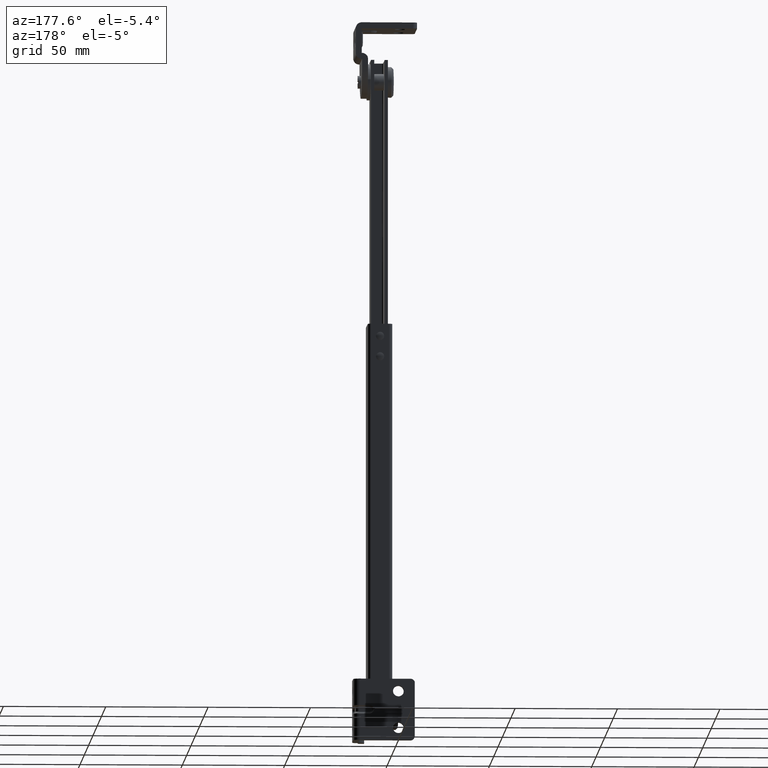
[diagram: clean part render]
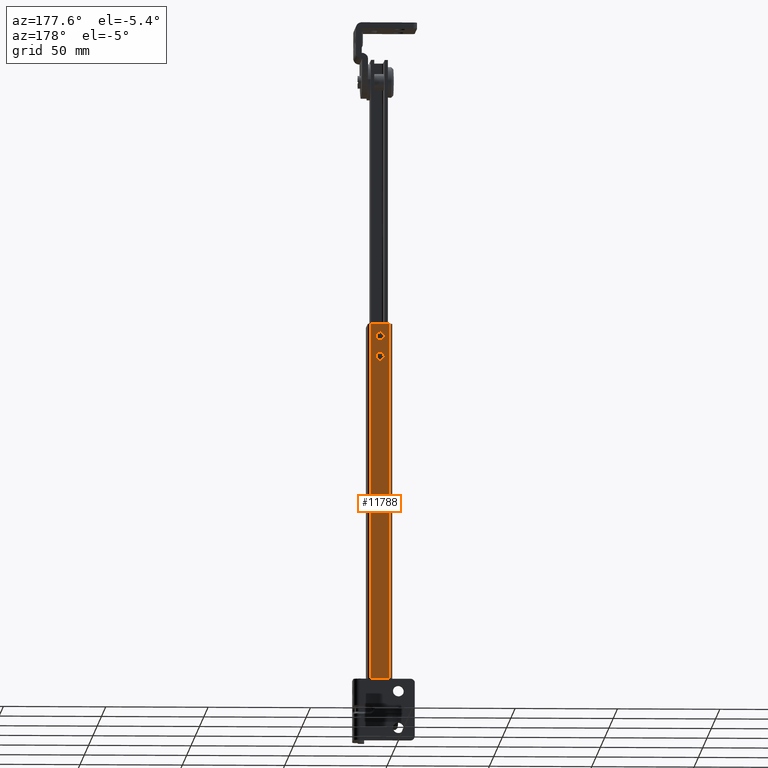
[diagram: same view with one face highlighted and labeled with its STEP entity id]
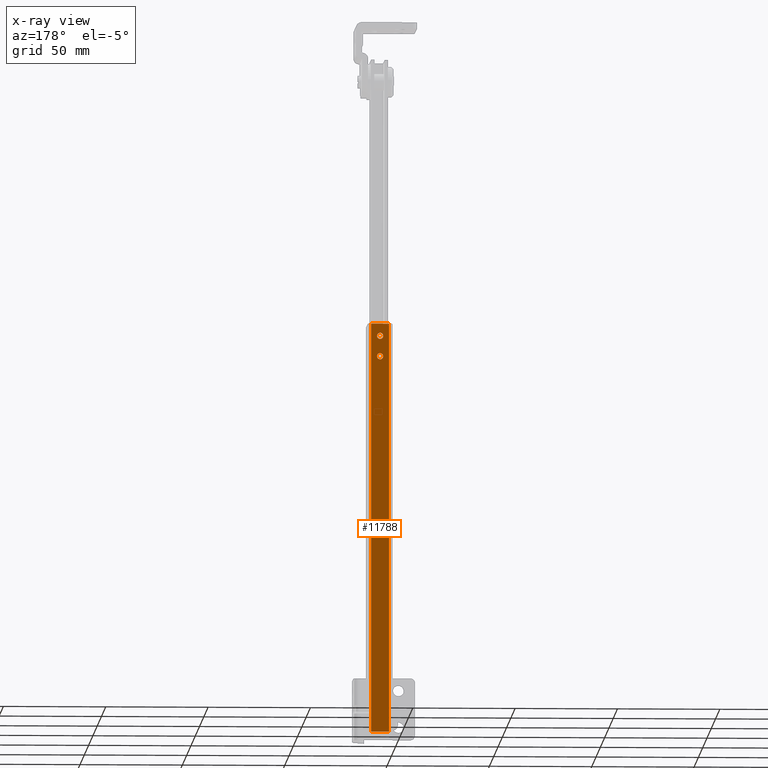
[diagram: x-ray of the same camera — body ghosted, the highlighted face saturated]
A machine part, auxiliary view. The second image highlights one B-rep face of the part: STEP entity #11788.
The next image is the same camera in x-ray: the body ghosted, the highlighted face saturated — about 0% of this face is hidden behind the body in this view.
In plain terms, the highlighted face is a freeform B-spline surface patch.
Its self-contained STEP definition (entity closure, byte-faithful):
#10694=CARTESIAN_POINT('',(7.489514289281042,12.500000000000000,174.677051354209990));
#10695=VERTEX_POINT('',#10694);
#10701=CARTESIAN_POINT('',(6.0,12.500000000000000,173.0));
#10702=VERTEX_POINT('',#10701);
#10703=CARTESIAN_POINT('',(7.489514289281042,12.499999999999996,174.677051354209940));
#10704=CARTESIAN_POINT('',(7.500000000000000,12.500000000000002,174.588836181726260));
#10705=CARTESIAN_POINT('',(7.500000000000000,12.500000000000000,174.500000000000000));
#10706=CARTESIAN_POINT('',(7.500000000000000,12.500000000000000,172.999999999999970));
#10707=CARTESIAN_POINT('',(6.0,12.500000000000000,173.0));
#10715=(BOUNDED_CURVE()B_SPLINE_CURVE(2,(#10703,#10704,#10705,#10706,#10707),.UNSPECIFIED.,.F.,.U.)B_SPLINE_CURVE_WITH_KNOTS((3,2,3),(0.229562473010769,0.250000000000000,0.500000000000000),.UNSPECIFIED.)CURVE()GEOMETRIC_REPRESENTATION_ITEM()RATIONAL_B_SPLINE_CURVE((0.956026753198310,0.976055947742150,1.0,0.707106781186548,1.0))REPRESENTATION_ITEM(''));
#10716=EDGE_CURVE('',#10695,#10702,#10715,.T.);
#10718=CARTESIAN_POINT('',(4.502797802476657,12.500000000000000,174.408427188908090));
#10719=VERTEX_POINT('',#10718);
#10720=CARTESIAN_POINT('',(6.0,12.500000000000000,173.0));
#10721=CARTESIAN_POINT('',(4.588940903021047,12.500000000000000,173.000000000000060));
#10722=CARTESIAN_POINT('',(4.502797802476657,12.499999999999998,174.408427188908120));
#10730=(BOUNDED_CURVE()B_SPLINE_CURVE(2,(#10720,#10721,#10722),.UNSPECIFIED.,.F.,.U.)B_SPLINE_CURVE_WITH_KNOTS((3,3),(0.500000000000000,0.739332961829477),.UNSPECIFIED.)CURVE()GEOMETRIC_REPRESENTATION_ITEM()RATIONAL_B_SPLINE_CURVE((1.0,0.719603993766429,0.976072040789155))REPRESENTATION_ITEM(''));
#10731=EDGE_CURVE('',#10702,#10719,#10730,.T.);
#10805=CARTESIAN_POINT('',(6.0,12.500000000000000,176.0));
#10806=VERTEX_POINT('',#10805);
#10807=CARTESIAN_POINT('',(4.502797802476657,12.499999999999996,174.408427188908060));
#10808=CARTESIAN_POINT('',(4.500000000000001,12.500000000000000,174.454170853257440));
#10809=CARTESIAN_POINT('',(4.500000000000001,12.500000000000000,174.500000000000000));
#10810=CARTESIAN_POINT('',(4.500000000000002,12.500000000000000,176.000000000000060));
#10811=CARTESIAN_POINT('',(6.0,12.500000000000000,176.0));
#10819=(BOUNDED_CURVE()B_SPLINE_CURVE(2,(#10807,#10808,#10809,#10810,#10811),.UNSPECIFIED.,.F.,.U.)B_SPLINE_CURVE_WITH_KNOTS((3,2,3),(0.739332961829477,0.750000000000000,1.0),.UNSPECIFIED.)CURVE()GEOMETRIC_REPRESENTATION_ITEM()RATIONAL_B_SPLINE_CURVE((0.976072040789155,0.987502787420118,1.0,0.707106781186548,1.0))REPRESENTATION_ITEM(''));
#10820=EDGE_CURVE('',#10719,#10806,#10819,.T.);
#10822=CARTESIAN_POINT('',(6.0,12.500000000000000,176.0));
#10823=CARTESIAN_POINT('',(7.332261784919076,12.499999999999998,176.000000000000090));
#10824=CARTESIAN_POINT('',(7.489514289281042,12.500000000000004,174.677051354209910));
#10832=(BOUNDED_CURVE()B_SPLINE_CURVE(2,(#10822,#10823,#10824),.UNSPECIFIED.,.F.,.U.)B_SPLINE_CURVE_WITH_KNOTS((3,3),(0.0,0.229562473010769),.UNSPECIFIED.)CURVE()GEOMETRIC_REPRESENTATION_ITEM()RATIONAL_B_SPLINE_CURVE((1.0,0.731050833444398,0.956026753198310))REPRESENTATION_ITEM(''));
#10833=EDGE_CURVE('',#10806,#10695,#10832,.T.);
#10880=CARTESIAN_POINT('',(7.489514289281044,12.500000000000000,184.677051354209990));
#10881=VERTEX_POINT('',#10880);
#10887=CARTESIAN_POINT('',(6.0,12.500000000000000,183.0));
#10888=VERTEX_POINT('',#10887);
#10889=CARTESIAN_POINT('',(7.489514289281044,12.500000000000000,184.677051354210020));
#10890=CARTESIAN_POINT('',(7.499999999999999,12.500000000000004,184.588836181726150));
#10891=CARTESIAN_POINT('',(7.500000000000000,12.500000000000000,184.500000000000000));
#10892=CARTESIAN_POINT('',(7.500000000000000,12.500000000000000,182.999999999999970));
#10893=CARTESIAN_POINT('',(6.0,12.500000000000000,183.0));
#10901=(BOUNDED_CURVE()B_SPLINE_CURVE(2,(#10889,#10890,#10891,#10892,#10893),.UNSPECIFIED.,.F.,.U.)B_SPLINE_CURVE_WITH_KNOTS((3,2,3),(0.229562473010775,0.250000000000000,0.500000000000000),.UNSPECIFIED.)CURVE()GEOMETRIC_REPRESENTATION_ITEM()RATIONAL_B_SPLINE_CURVE((0.956026753198322,0.976055947742156,1.0,0.707106781186548,1.0))REPRESENTATION_ITEM(''));
#10902=EDGE_CURVE('',#10881,#10888,#10901,.T.);
#10904=CARTESIAN_POINT('',(4.502797802476657,12.500000000000000,184.408427188908090));
#10905=VERTEX_POINT('',#10904);
#10906=CARTESIAN_POINT('',(6.0,12.500000000000000,183.0));
#10907=CARTESIAN_POINT('',(4.588940903021047,12.500000000000000,183.000000000000090));
#10908=CARTESIAN_POINT('',(4.502797802476657,12.499999999999998,184.408427188908060));
#10916=(BOUNDED_CURVE()B_SPLINE_CURVE(2,(#10906,#10907,#10908),.UNSPECIFIED.,.F.,.U.)B_SPLINE_CURVE_WITH_KNOTS((3,3),(0.500000000000000,0.739332961829477),.UNSPECIFIED.)CURVE()GEOMETRIC_REPRESENTATION_ITEM()RATIONAL_B_SPLINE_CURVE((1.0,0.719603993766429,0.976072040789155))REPRESENTATION_ITEM(''));
#10917=EDGE_CURVE('',#10888,#10905,#10916,.T.);
#10991=CARTESIAN_POINT('',(6.0,12.500000000000000,186.0));
#10992=VERTEX_POINT('',#10991);
#10993=CARTESIAN_POINT('',(4.502797802476657,12.499999999999996,184.408427188908120));
#10994=CARTESIAN_POINT('',(4.500000000000001,12.500000000000000,184.454170853257440));
#10995=CARTESIAN_POINT('',(4.500000000000001,12.500000000000000,184.500000000000000));
#10996=CARTESIAN_POINT('',(4.500000000000002,12.500000000000000,186.000000000000090));
#10997=CARTESIAN_POINT('',(6.0,12.500000000000000,186.0));
#11005=(BOUNDED_CURVE()B_SPLINE_CURVE(2,(#10993,#10994,#10995,#10996,#10997),.UNSPECIFIED.,.F.,.U.)B_SPLINE_CURVE_WITH_KNOTS((3,2,3),(0.739332961829477,0.750000000000000,1.0),.UNSPECIFIED.)CURVE()GEOMETRIC_REPRESENTATION_ITEM()RATIONAL_B_SPLINE_CURVE((0.976072040789155,0.987502787420118,1.0,0.707106781186548,1.0))REPRESENTATION_ITEM(''));
#11006=EDGE_CURVE('',#10905,#10992,#11005,.T.);
#11008=CARTESIAN_POINT('',(6.0,12.500000000000000,186.0));
#11009=CARTESIAN_POINT('',(7.332261784919123,12.500000000000000,186.000000000000030));
#11010=CARTESIAN_POINT('',(7.489514289281045,12.499999999999993,184.677051354209960));
#11018=(BOUNDED_CURVE()B_SPLINE_CURVE(2,(#11008,#11009,#11010),.UNSPECIFIED.,.F.,.U.)B_SPLINE_CURVE_WITH_KNOTS((3,3),(0.0,0.229562473010775),.UNSPECIFIED.)CURVE()GEOMETRIC_REPRESENTATION_ITEM()RATIONAL_B_SPLINE_CURVE((1.0,0.731050833444391,0.956026753198321))REPRESENTATION_ITEM(''));
#11019=EDGE_CURVE('',#10992,#10881,#11018,.T.);
#11399=CARTESIAN_POINT('',(10.402523821338040,12.500000000000000,190.500000000000000));
#11400=VERTEX_POINT('',#11399);
#11414=CARTESIAN_POINT('',(1.597476178661950,12.500000000000000,190.500000000000000));
#11415=VERTEX_POINT('',#11414);
#11416=CARTESIAN_POINT('',(10.402523821338040,12.500000000000000,190.500000000000000));
#11417=CARTESIAN_POINT('',(1.597476178661950,12.500000000000000,190.500000000000000));
#11418=QUASI_UNIFORM_CURVE('',1,(#11416,#11417),.UNSPECIFIED.,.F.,.U.);
#11419=EDGE_CURVE('',#11400,#11415,#11418,.T.);
#11525=CARTESIAN_POINT('',(1.597476178661950,12.500000000000000,-9.500000000000000));
#11526=VERTEX_POINT('',#11525);
#11540=CARTESIAN_POINT('',(10.402523821338040,12.500000000000000,-9.500000000000000));
#11541=VERTEX_POINT('',#11540);
#11542=CARTESIAN_POINT('',(10.402523821338040,12.500000000000000,-9.500000000000000));
#11543=CARTESIAN_POINT('',(1.597476178661950,12.500000000000000,-9.500000000000000));
#11544=QUASI_UNIFORM_CURVE('',1,(#11542,#11543),.UNSPECIFIED.,.F.,.U.);
#11545=EDGE_CURVE('',#11541,#11526,#11544,.T.);
#11661=CARTESIAN_POINT('',(1.597476178661950,12.500000000000000,-9.500000000000000));
#11662=CARTESIAN_POINT('',(1.597476178661950,12.500000000000000,190.500000000000000));
#11663=QUASI_UNIFORM_CURVE('',1,(#11661,#11662),.UNSPECIFIED.,.F.,.U.);
#11664=EDGE_CURVE('',#11526,#11415,#11663,.T.);
#11696=CARTESIAN_POINT('',(10.402523821338040,12.500000000000000,-9.500000000000000));
#11697=CARTESIAN_POINT('',(10.402523821338040,12.500000000000000,190.500000000000000));
#11698=QUASI_UNIFORM_CURVE('',1,(#11696,#11697),.UNSPECIFIED.,.F.,.U.);
#11699=EDGE_CURVE('',#11541,#11400,#11698,.T.);
#11765=CARTESIAN_POINT('',(1.157663983320683,12.500000000000000,200.489999612361200));
#11766=CARTESIAN_POINT('',(1.157663983320683,12.500000000000000,-19.490004976779211));
#11767=CARTESIAN_POINT('',(10.842336174125830,12.500000000000000,200.489999612361200));
#11768=CARTESIAN_POINT('',(10.842336174125830,12.500000000000000,-19.490004976779211));
#11769=B_SPLINE_SURFACE_WITH_KNOTS('',1,1,((#11765,#11767),(#11766,#11768)),.UNSPECIFIED.,.F.,.F.,.U.,(2,2),(2,2),(0.0,219.980004589140410),(0.0,9.684672190805145),.UNSPECIFIED.);
#11770=ORIENTED_EDGE('',*,*,#11419,.F.);
#11771=ORIENTED_EDGE('',*,*,#11699,.F.);
#11772=ORIENTED_EDGE('',*,*,#11545,.T.);
#11773=ORIENTED_EDGE('',*,*,#11664,.T.);
#11774=EDGE_LOOP('',(#11770,#11771,#11772,#11773));
#11775=FACE_OUTER_BOUND('',#11774,.T.);
#11776=ORIENTED_EDGE('',*,*,#10917,.F.);
#11777=ORIENTED_EDGE('',*,*,#10902,.F.);
#11778=ORIENTED_EDGE('',*,*,#11019,.F.);
#11779=ORIENTED_EDGE('',*,*,#11006,.F.);
#11780=EDGE_LOOP('',(#11776,#11777,#11778,#11779));
#11781=FACE_BOUND('',#11780,.T.);
#11782=ORIENTED_EDGE('',*,*,#10731,.F.);
#11783=ORIENTED_EDGE('',*,*,#10716,.F.);
#11784=ORIENTED_EDGE('',*,*,#10833,.F.);
#11785=ORIENTED_EDGE('',*,*,#10820,.F.);
#11786=EDGE_LOOP('',(#11782,#11783,#11784,#11785));
#11787=FACE_BOUND('',#11786,.T.);
#11788=ADVANCED_FACE('',(#11775,#11781,#11787),#11769,.F.);